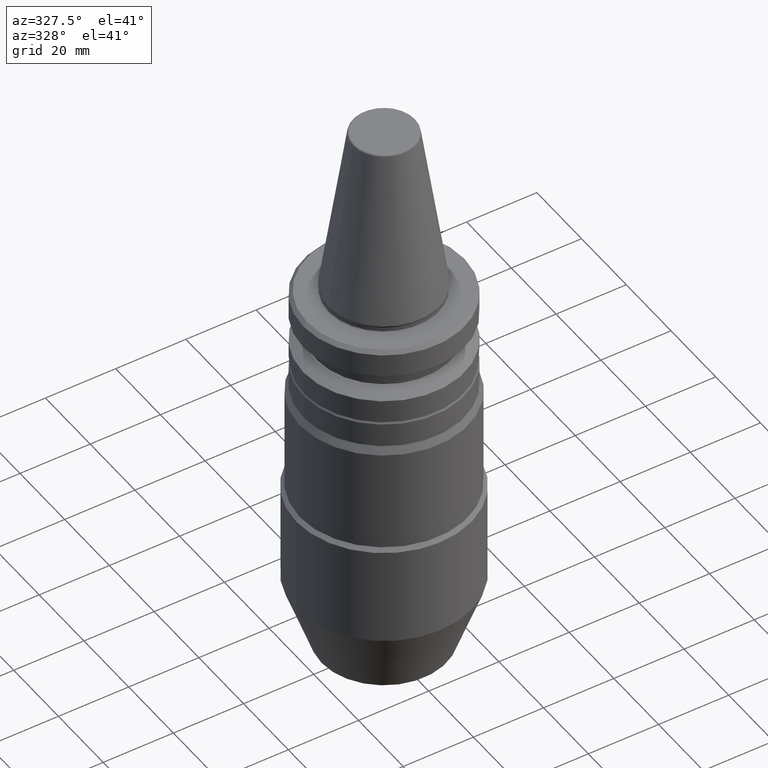
[diagram: clean part render]
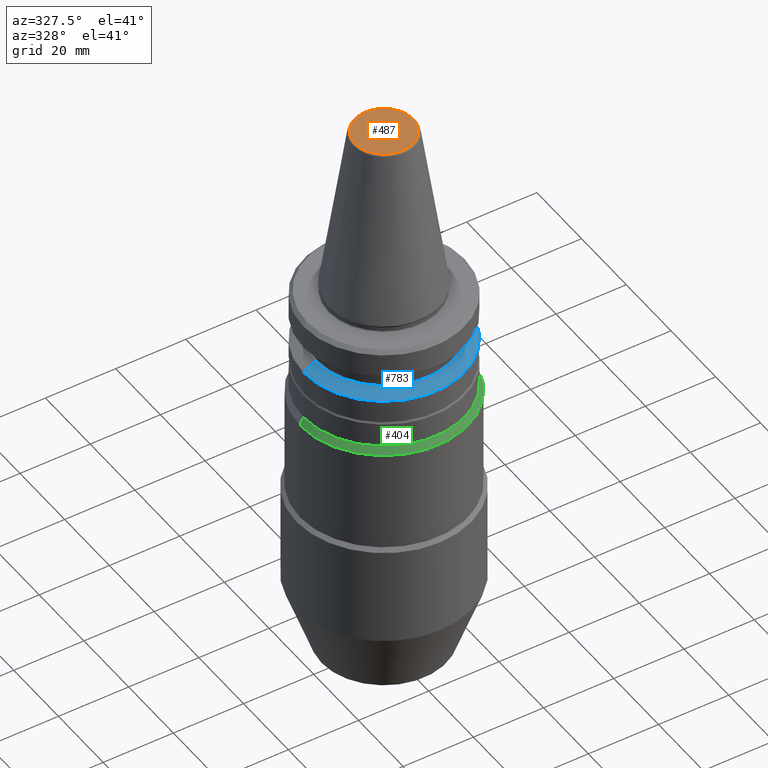
[diagram: same view with three faces highlighted in distinct colors, each labeled with its STEP entity id]
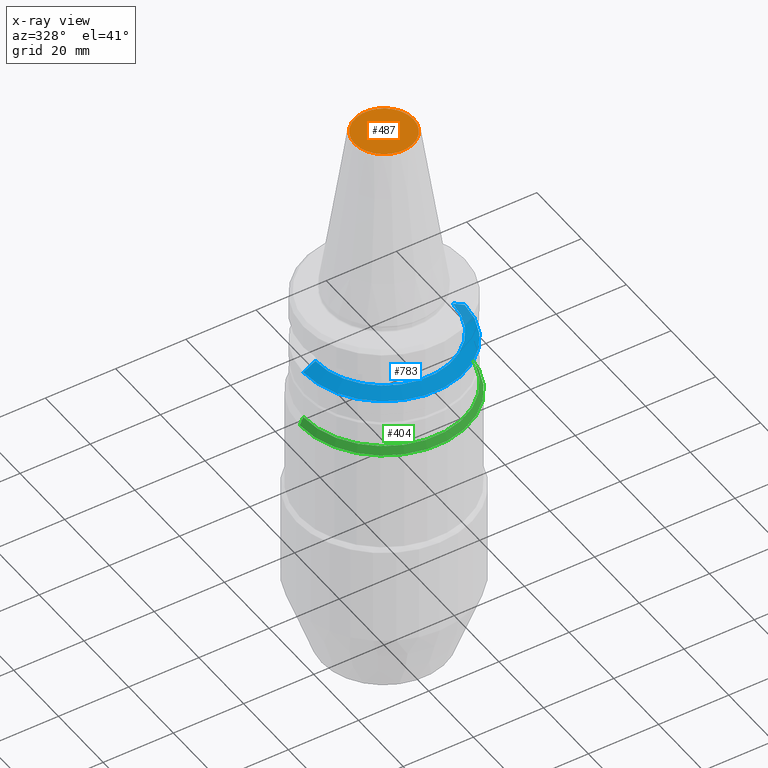
[diagram: x-ray of the same camera — body ghosted, the three highlighted faces saturated]
A machine part, auxiliary view with three faces highlighted in distinct colors.
The next image is the same camera in x-ray (body ghosted, the three faces saturated) — at least one of them is partly hidden behind the body in this view.
Their STEP definitions:

[orange] entity #487 — the highlighted planar face has unit normal (0, 0, -1).
#24 = CARTESIAN_POINT ( 'NONE',  ( -8.384228427309182100, 1.057067554674888800E-015, 48.24999999999973000 ) ) ;
#52 = VERTEX_POINT ( 'NONE', #24 ) ;
#60 = CARTESIAN_POINT ( 'NONE',  ( 0.0000000000000000000, 0.0000000000000000000, 48.24999999999973000 ) ) ;
#155 = PLANE ( 'NONE',  #402 ) ;
#194 = CARTESIAN_POINT ( 'NONE',  ( 0.0000000000000000000, 8.384228427309182100, 48.24999999999982200 ) ) ;
#222 = EDGE_CURVE ( 'NONE', #52, #867, #397, .T. ) ;
#226 = FACE_OUTER_BOUND ( 'NONE', #607, .T. ) ;
#396 = CARTESIAN_POINT ( 'NONE',  ( 0.0000000000000000000, 0.0000000000000000000, 48.24999999999973000 ) ) ;
#397 = CIRCLE ( 'NONE', #1119, 8.384228427309182100 ) ;
#402 = AXIS2_PLACEMENT_3D ( 'NONE', #194, #935, #1154 ) ;
#423 = DIRECTION ( 'NONE',  ( 1.000000000000000000, 0.0000000000000000000, 0.0000000000000000000 ) ) ;
#487 = ADVANCED_FACE ( 'NONE', ( #226 ), #155, .F. ) ;
#582 = ORIENTED_EDGE ( 'NONE', *, *, #222, .T. ) ;
#607 = EDGE_LOOP ( 'NONE', ( #840, #582 ) ) ;
#650 = DIRECTION ( 'NONE',  ( 1.000000000000000000, 0.0000000000000000000, 0.0000000000000000000 ) ) ;
#738 = EDGE_CURVE ( 'NONE', #867, #52, #922, .T. ) ;
#795 = DIRECTION ( 'NONE',  ( -0.0000000000000000000, -0.0000000000000000000, 1.000000000000000000 ) ) ;
#840 = ORIENTED_EDGE ( 'NONE', *, *, #738, .T. ) ;
#843 = AXIS2_PLACEMENT_3D ( 'NONE', #60, #1191, #423 ) ;
#867 = VERTEX_POINT ( 'NONE', #1190 ) ;
#922 = CIRCLE ( 'NONE', #843, 8.384228427309182100 ) ;
#935 = DIRECTION ( 'NONE',  ( 0.0000000000000000000, 0.0000000000000000000, -1.000000000000000000 ) ) ;
#1119 = AXIS2_PLACEMENT_3D ( 'NONE', #396, #795, #650 ) ;
#1154 = DIRECTION ( 'NONE',  ( -1.000000000000000000, 0.0000000000000000000, -0.0000000000000000000 ) ) ;
#1190 = CARTESIAN_POINT ( 'NONE',  ( 8.384228427309182100, 0.0000000000000000000, 48.24999999999973000 ) ) ;
#1191 = DIRECTION ( 'NONE',  ( -0.0000000000000000000, -0.0000000000000000000, 1.000000000000000000 ) ) ;

[blue] entity #783 — the highlighted conical surface has half-angle 60 deg.
#23 = AXIS2_PLACEMENT_3D ( 'NONE', #313, #212, #236 ) ;
#34 = CARTESIAN_POINT ( 'NONE',  ( 23.00000000000013100, 0.0000000000000000000, -17.74988266494553800 ) ) ;
#39 = ORIENTED_EDGE ( 'NONE', *, *, #1188, .F. ) ;
#57 = AXIS2_PLACEMENT_3D ( 'NONE', #490, #948, #803 ) ;
#84 = CARTESIAN_POINT ( 'NONE',  ( 19.53610161513791300, 2.604585034559268600E-015, -15.74999999999981900 ) ) ;
#186 = CARTESIAN_POINT ( 'NONE',  ( -19.53610161513791300, 0.0000000000000000000, -15.74999999999981900 ) ) ;
#212 = DIRECTION ( 'NONE',  ( -0.0000000000000000000, -0.0000000000000000000, 1.000000000000000000 ) ) ;
#214 = VECTOR ( 'NONE', #266, 999.9999999999998900 ) ;
#218 = LINE ( 'NONE', #647, #214 ) ;
#236 = DIRECTION ( 'NONE',  ( 1.000000000000000000, 0.0000000000000000000, 0.0000000000000000000 ) ) ;
#266 = DIRECTION ( 'NONE',  ( -0.8660254037844380400, 0.0000000000000000000, -0.5000000000000012200 ) ) ;
#273 = EDGE_CURVE ( 'NONE', #852, #417, #385, .T. ) ;
#302 = CIRCLE ( 'NONE', #23, 23.00000000000013100 ) ;
#313 = CARTESIAN_POINT ( 'NONE',  ( 0.0000000000000000000, 0.0000000000000000000, -17.74988266494553800 ) ) ;
#349 = EDGE_CURVE ( 'NONE', #900, #530, #302, .T. ) ;
#385 = CIRCLE ( 'NONE', #57, 19.53610161513791300 ) ;
#417 = VERTEX_POINT ( 'NONE', #84 ) ;
#448 = CARTESIAN_POINT ( 'NONE',  ( 23.00000000000013100, 2.816687638038928500E-015, -17.74988266494553800 ) ) ;
#489 = DIRECTION ( 'NONE',  ( 0.0000000000000000000, 0.0000000000000000000, -1.000000000000000000 ) ) ;
#490 = CARTESIAN_POINT ( 'NONE',  ( 0.0000000000000000000, 0.0000000000000000000, -15.74999999999981900 ) ) ;
#514 = CARTESIAN_POINT ( 'NONE',  ( 0.0000000000000000000, 0.0000000000000000000, -17.74988266494553800 ) ) ;
#530 = VERTEX_POINT ( 'NONE', #34 ) ;
#537 = DIRECTION ( 'NONE',  ( 0.8660254037844380400, 1.060575238724906200E-016, -0.5000000000000012200 ) ) ;
#570 = EDGE_CURVE ( 'NONE', #852, #900, #218, .T. ) ;
#612 = EDGE_LOOP ( 'NONE', ( #39, #1211, #623, #643 ) ) ;
#623 = ORIENTED_EDGE ( 'NONE', *, *, #570, .T. ) ;
#643 = ORIENTED_EDGE ( 'NONE', *, *, #349, .T. ) ;
#647 = CARTESIAN_POINT ( 'NONE',  ( -23.00000000000013100, 0.0000000000000000000, -17.74988266494553800 ) ) ;
#783 = ADVANCED_FACE ( 'NONE', ( #953 ), #1014, .T. ) ;
#801 = CARTESIAN_POINT ( 'NONE',  ( -23.00000000000013100, 2.816687638038928500E-015, -17.74988266494553800 ) ) ;
#803 = DIRECTION ( 'NONE',  ( 1.000000000000000000, 0.0000000000000000000, 0.0000000000000000000 ) ) ;
#852 = VERTEX_POINT ( 'NONE', #186 ) ;
#900 = VERTEX_POINT ( 'NONE', #801 ) ;
#901 = VECTOR ( 'NONE', #537, 999.9999999999998900 ) ;
#921 = AXIS2_PLACEMENT_3D ( 'NONE', #514, #489, #1012 ) ;
#948 = DIRECTION ( 'NONE',  ( -0.0000000000000000000, -0.0000000000000000000, 1.000000000000000000 ) ) ;
#953 = FACE_OUTER_BOUND ( 'NONE', #612, .T. ) ;
#1012 = DIRECTION ( 'NONE',  ( -1.000000000000000000, 0.0000000000000000000, 0.0000000000000000000 ) ) ;
#1014 = CONICAL_SURFACE ( 'NONE', #921, 23.00000000000013100, 1.047197551196596300 ) ;
#1078 = LINE ( 'NONE', #448, #901 ) ;
#1188 = EDGE_CURVE ( 'NONE', #417, #530, #1078, .T. ) ;
#1211 = ORIENTED_EDGE ( 'NONE', *, *, #273, .F. ) ;

[green] entity #404 — the highlighted conical surface has half-angle 25 deg.
#8 = CARTESIAN_POINT ( 'NONE',  ( -24.00000000000002100, 2.939152317953650300E-015, -34.14999999999989200 ) ) ;
#31 = CIRCLE ( 'NONE', #358, 24.00000000000002100 ) ;
#64 = CARTESIAN_POINT ( 'NONE',  ( 24.00000000000002100, 2.939152317953650300E-015, -34.14999999999989200 ) ) ;
#79 = ORIENTED_EDGE ( 'NONE', *, *, #937, .T. ) ;
#86 = DIRECTION ( 'NONE',  ( -0.0000000000000000000, -0.0000000000000000000, 1.000000000000000000 ) ) ;
#118 = AXIS2_PLACEMENT_3D ( 'NONE', #132, #148, #593 ) ;
#125 = VECTOR ( 'NONE', #674, 999.9999999999998900 ) ;
#132 = CARTESIAN_POINT ( 'NONE',  ( 0.0000000000000000000, 0.0000000000000000000, -32.00549307949067700 ) ) ;
#148 = DIRECTION ( 'NONE',  ( -0.0000000000000000000, -0.0000000000000000000, 1.000000000000000000 ) ) ;
#156 = LINE ( 'NONE', #64, #125 ) ;
#206 = VERTEX_POINT ( 'NONE', #8 ) ;
#229 = CARTESIAN_POINT ( 'NONE',  ( 23.00000000000013100, 2.877919977996289400E-015, -32.00549307949067700 ) ) ;
#263 = ORIENTED_EDGE ( 'NONE', *, *, #424, .F. ) ;
#276 = CONICAL_SURFACE ( 'NONE', #756, 24.00000000000002100, 0.4363323129986015900 ) ;
#305 = CIRCLE ( 'NONE', #118, 23.00000000000013100 ) ;
#319 = FACE_OUTER_BOUND ( 'NONE', #860, .T. ) ;
#358 = AXIS2_PLACEMENT_3D ( 'NONE', #873, #86, #1050 ) ;
#404 = ADVANCED_FACE ( 'NONE', ( #319 ), #276, .T. ) ;
#419 = CARTESIAN_POINT ( 'NONE',  ( -24.00000000000002100, 0.0000000000000000000, -34.14999999999989200 ) ) ;
#420 = DIRECTION ( 'NONE',  ( 0.0000000000000000000, 0.0000000000000000000, -1.000000000000000000 ) ) ;
#421 = CARTESIAN_POINT ( 'NONE',  ( 24.00000000000002100, 0.0000000000000000000, -34.14999999999989200 ) ) ;
#424 = EDGE_CURVE ( 'NONE', #886, #1032, #305, .T. ) ;
#593 = DIRECTION ( 'NONE',  ( 1.000000000000000000, 0.0000000000000000000, 0.0000000000000000000 ) ) ;
#603 = EDGE_CURVE ( 'NONE', #1032, #1016, #156, .T. ) ;
#641 = ORIENTED_EDGE ( 'NONE', *, *, #603, .F. ) ;
#674 = DIRECTION ( 'NONE',  ( 0.4226182617407168700, 5.175581015019872600E-017, -0.9063077870366419400 ) ) ;
#676 = EDGE_CURVE ( 'NONE', #206, #1016, #31, .T. ) ;
#689 = DIRECTION ( 'NONE',  ( -1.000000000000000000, 0.0000000000000000000, 0.0000000000000000000 ) ) ;
#726 = CARTESIAN_POINT ( 'NONE',  ( 0.0000000000000000000, 0.0000000000000000000, -34.14999999999989200 ) ) ;
#746 = ORIENTED_EDGE ( 'NONE', *, *, #676, .T. ) ;
#756 = AXIS2_PLACEMENT_3D ( 'NONE', #726, #420, #689 ) ;
#860 = EDGE_LOOP ( 'NONE', ( #641, #263, #79, #746 ) ) ;
#873 = CARTESIAN_POINT ( 'NONE',  ( 0.0000000000000000000, 0.0000000000000000000, -34.14999999999989200 ) ) ;
#886 = VERTEX_POINT ( 'NONE', #888 ) ;
#888 = CARTESIAN_POINT ( 'NONE',  ( -23.00000000000013100, 0.0000000000000000000, -32.00549307949067700 ) ) ;
#937 = EDGE_CURVE ( 'NONE', #886, #206, #1133, .T. ) ;
#955 = DIRECTION ( 'NONE',  ( -0.4226182617407168700, 0.0000000000000000000, -0.9063077870366419400 ) ) ;
#1016 = VERTEX_POINT ( 'NONE', #421 ) ;
#1032 = VERTEX_POINT ( 'NONE', #229 ) ;
#1050 = DIRECTION ( 'NONE',  ( 1.000000000000000000, 0.0000000000000000000, 0.0000000000000000000 ) ) ;
#1133 = LINE ( 'NONE', #419, #1136 ) ;
#1136 = VECTOR ( 'NONE', #955, 999.9999999999998900 ) ;